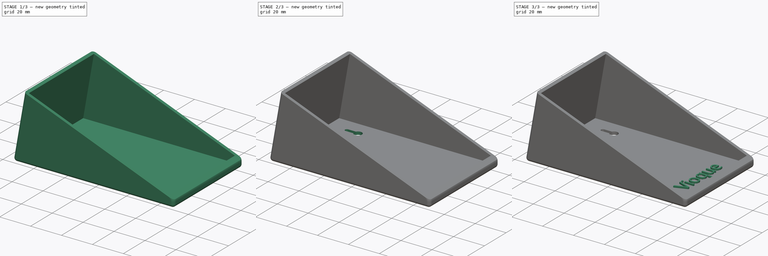
[diagram: build sequence overview — one tinted view per stage of 3, left to right]
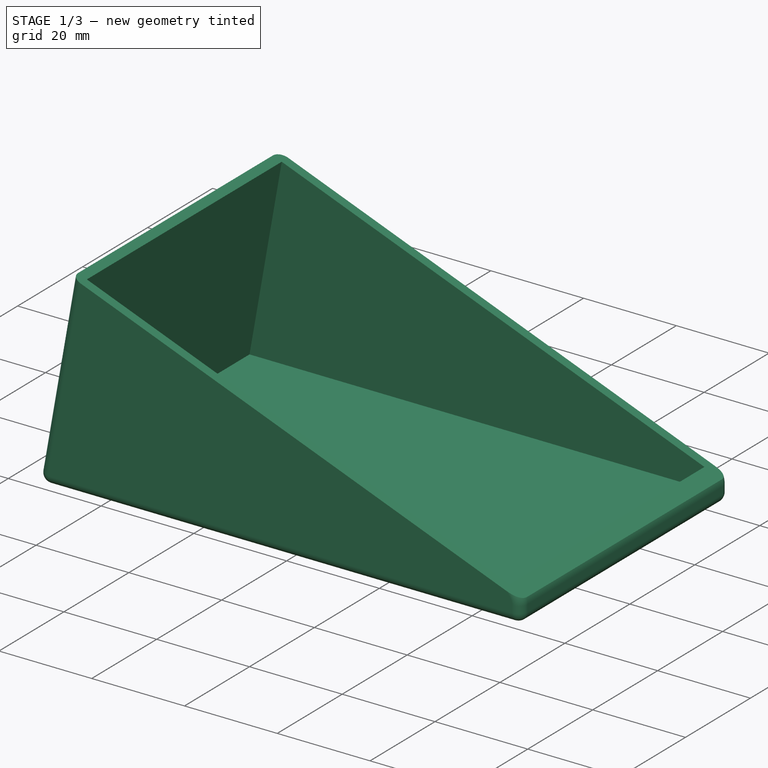
[diagram: stage 1 of 3 — iso view after this stage's code; geometry added in this stage tinted green]
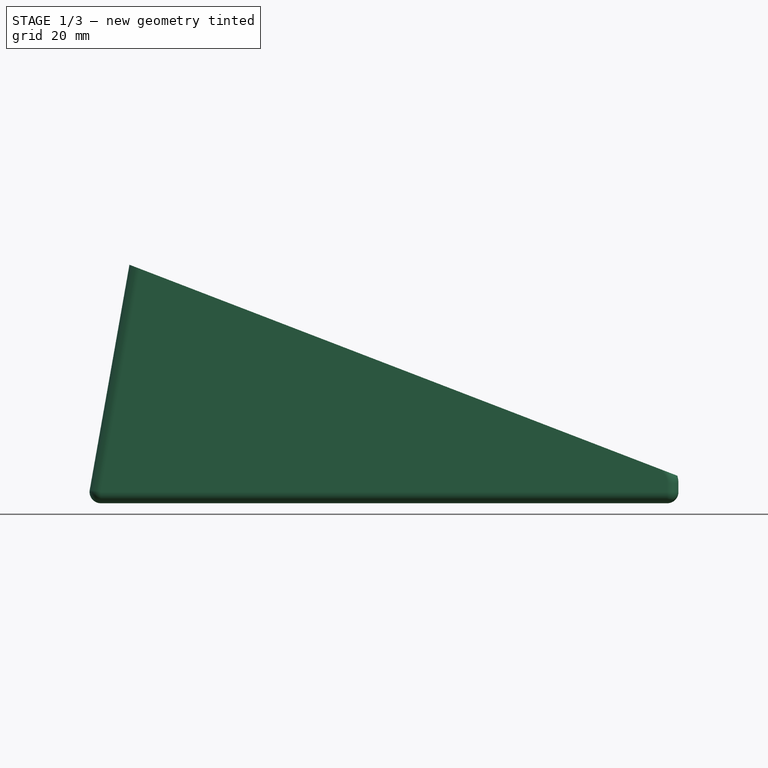
[diagram: stage 1 of 3 — front view after this stage's code; geometry added in this stage tinted green]
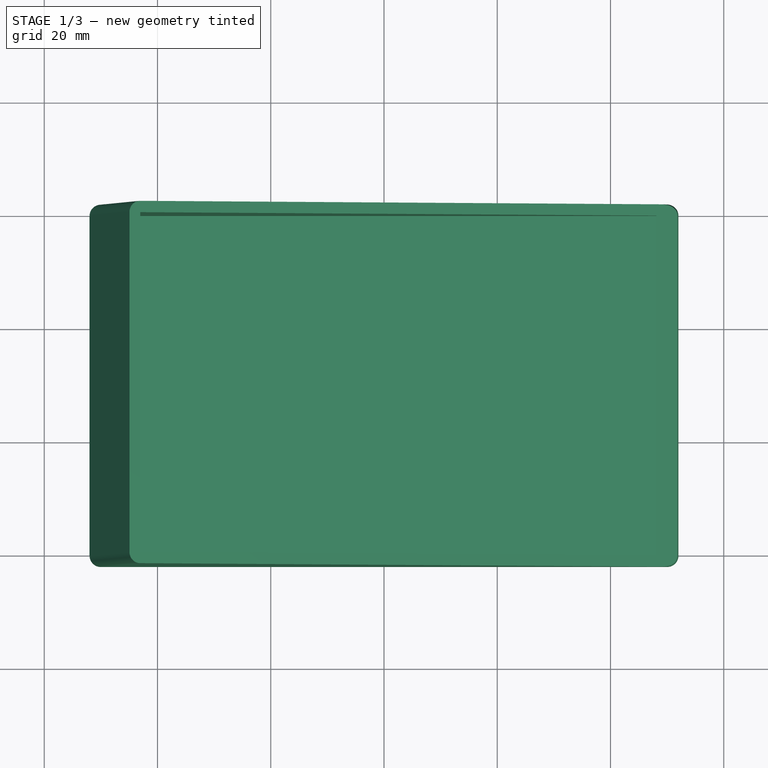
[diagram: stage 1 of 3 — top view after this stage's code; geometry added in this stage tinted green]
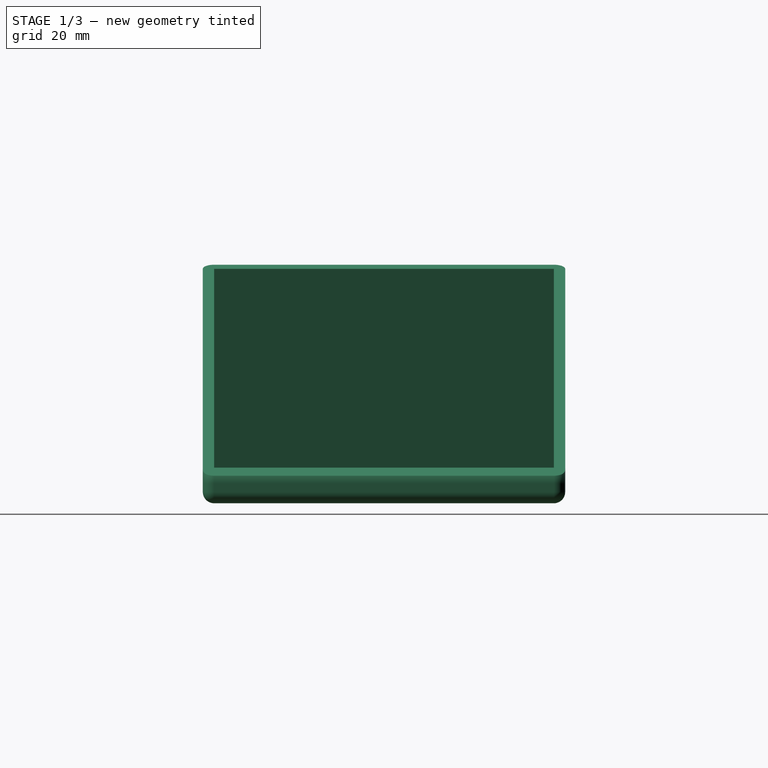
[diagram: stage 1 of 3 — right view after this stage's code; geometry added in this stage tinted green]
FCSTD DOCUMENT  (FreeCAD 0.15R4671 (Git))
Label: Visera timbre
License: All rights reserved
LicenseURL: http://en.wikipedia.org/wiki/All_rights_reserved
objects: Drawing::FeatureViewPart×3, Sketcher::SketchObject×2, PartDesign::Pad×2, App::FeaturePython×2, Part::Thickness×1, PartDesign::Pocket×1, Part::MultiCommon×1, Part::Part2DObjectPython×1, App::DocumentObjectGroup×1, Part::MultiFuse×1, Drawing::FeatureViewPython×1, Drawing::FeaturePage×1
note: 12 computed .brp shape members not serialized (recipe doc carries the construction recipe); baked Part::Feature solids carry a one-line shape summary decoded from their .brp

FEATURE [Sketcher::SketchObject] Sketch
  Placement = pos=(0,0,0) rot=(1,0,0;1.5708rad)
  sketch-geometry (5):
    g0: LineSegment StartX=-50 StartY=0 StartZ=0 EndX=-43.0541 EndY=39.3923 EndZ=0
    g1: LineSegment StartX=50 StartY=0 StartZ=0 EndX=-50 EndY=0 EndZ=0
    g2: LineSegment StartX=-43.0541 StartY=39.3923 StartZ=0 EndX=48.0781 EndY=4.29961 EndZ=0
    g3: LineSegment StartX=50 StartY=1.5 StartZ=0 EndX=50 EndY=0 EndZ=0
    g4: ArcOfCircle CenterX=47 CenterY=1.5 CenterZ=0 NormalX=0 NormalY=0 NormalZ=1 Radius=3 StartAngle=0 EndAngle=1.20322
  constraints (13):
    c: Coincident(g0,g1)
    c: PointOnObject(g0,g-1)
    c: Angle(g1,g0) = 1.39626
    c: Symmetric(g0,g1,g-2)
    c: DistanceX(g1) = -100
    c: Distance(g0) = 40
    c: Coincident(g2,g0)
    c: Coincident(g3,g1)
    c: Vertical(g3)
    c: Tangent(g2,g4) = 1.5708
    c: Tangent(g3,g4) = 1.5708
    c: Radius(g4) = 3
    c: DistanceY(g4,g1) = -1.5
FEATURE [PartDesign::Pad] Pad
  Length = 60
  Length2 = 100
  Placement = pos=(0,0,0) rot=(1,0,0;1.5708rad)
  Sketch = -> Sketch
  Type = 0
FEATURE [Part::Thickness] Thickness
  Faces = -> Pad [Face2]
  Intersection = false
  Join = 0
  Mode = 0
  SelfIntersection = false
  Value = 2
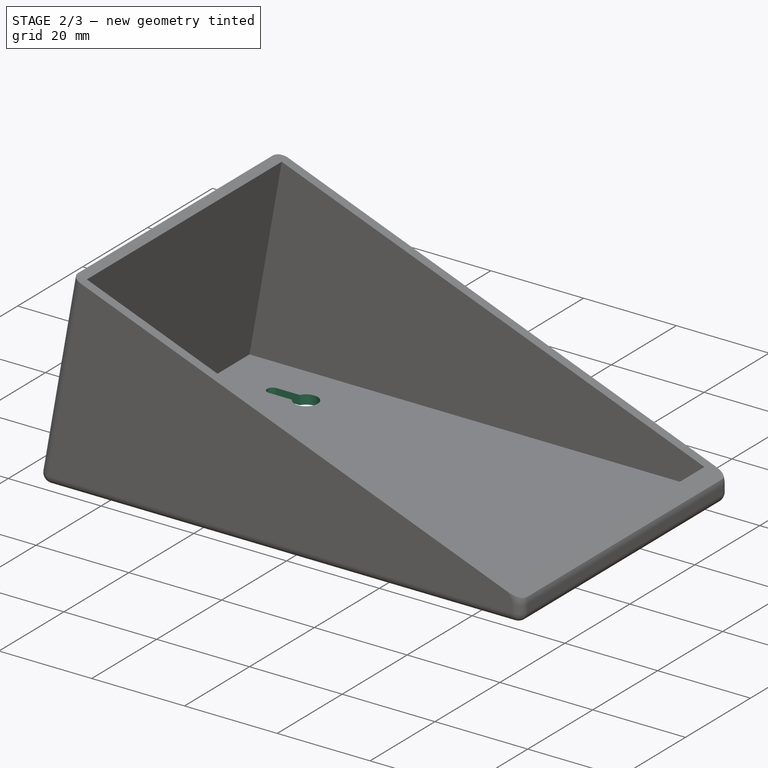
[diagram: stage 2 of 3 — iso view after this stage's code; geometry added in this stage tinted green]
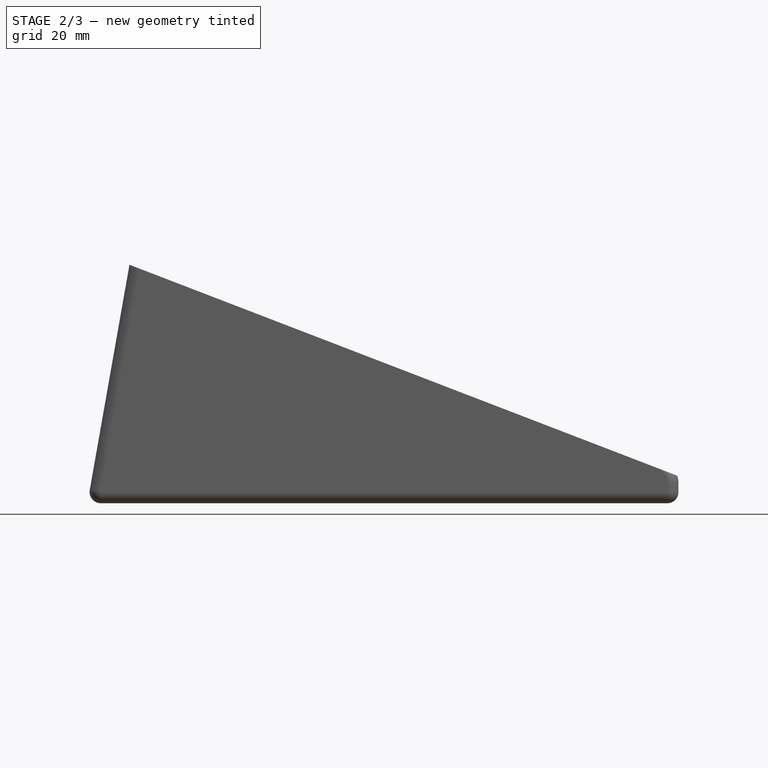
[diagram: stage 2 of 3 — front view after this stage's code; geometry added in this stage tinted green]
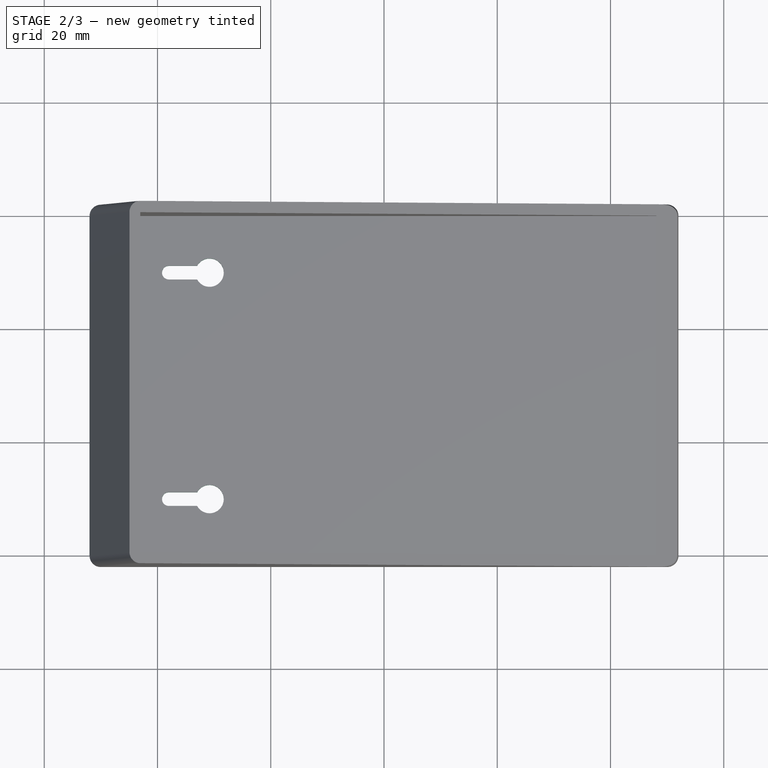
[diagram: stage 2 of 3 — top view after this stage's code; geometry added in this stage tinted green]
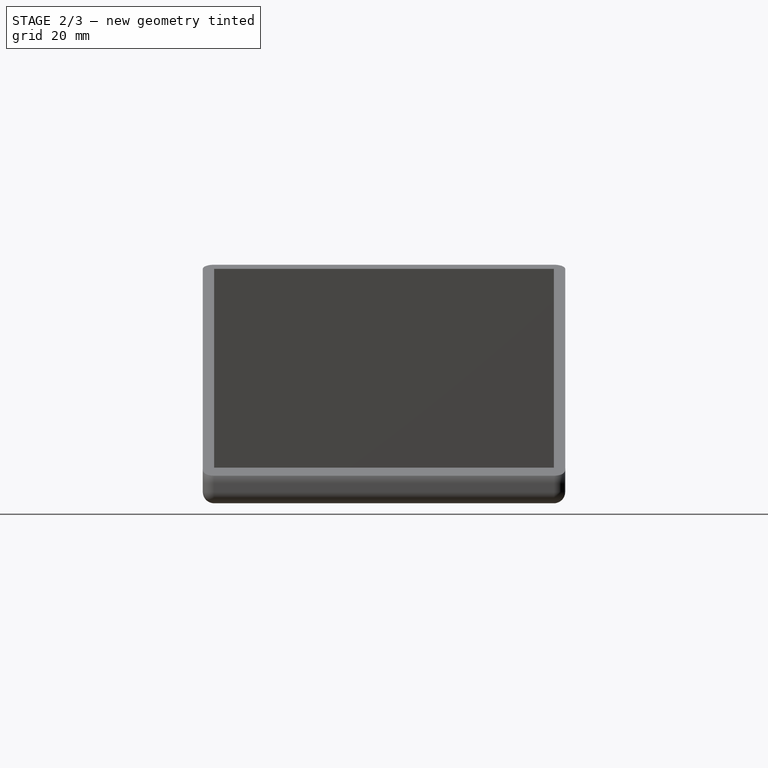
[diagram: stage 2 of 3 — right view after this stage's code; geometry added in this stage tinted green]
FEATURE [Sketcher::SketchObject] Sketch001
  Support = -> Thickness [Face3]
  sketch-geometry (8):
    g0: ArcOfCircle CenterX=-30.8068 CenterY=-10 CenterZ=0 NormalX=0 NormalY=0 NormalZ=1 Radius=2.5 StartAngle=3.64225 EndAngle=8.92412
    g1: ArcOfCircle CenterX=-38 CenterY=-10 CenterZ=0 NormalX=0 NormalY=0 NormalZ=1 Radius=1.2 StartAngle=1.5708 EndAngle=4.71239
    g2: LineSegment StartX=-38 StartY=-8.8 StartZ=0 EndX=-33 EndY=-8.8 EndZ=0
    g3: LineSegment StartX=-38 StartY=-11.2 StartZ=0 EndX=-33 EndY=-11.2 EndZ=0
    g4: ArcOfCircle CenterX=-30.8068 CenterY=-50 CenterZ=0 NormalX=0 NormalY=0 NormalZ=1 Radius=2.5 StartAngle=3.64225 EndAngle=8.92412
    g5: ArcOfCircle CenterX=-38 CenterY=-50 CenterZ=0 NormalX=0 NormalY=0 NormalZ=1 Radius=1.2 StartAngle=1.5708 EndAngle=4.71239
    g6: LineSegment StartX=-38 StartY=-48.8 StartZ=0 EndX=-33 EndY=-48.8 EndZ=0
    g7: LineSegment StartX=-38 StartY=-51.2 StartZ=0 EndX=-33 EndY=-51.2 EndZ=0
  constraints (28):
    c: Radius(g0) = 2.5
    c: Radius(g1) = 1.2
    c: Angle(g1) = 3.14159
    c: Coincident(g2,g1)
    c: Coincident(g2,g0)
    c: Horizontal(g2)
    c: Coincident(g3,g1)
    c: Coincident(g3,g0)
    c: Horizontal(g3)
    c: Equal(g2,g3)
    c: DistanceX(g-1,g1) = -38
    c: Coincident(g6,g5)
    c: Coincident(g6,g4)
    c: Horizontal(g6)
    c: Coincident(g7,g5)
    c: Horizontal(g7)
    c: Coincident(g7,g4)
    c: Equal(g6,g7)
    c: DistanceX(g6) = 5
    c: Radius(g5) = 1.2
    c: Angle(g5) = 3.14159
    c: Radius(g4) = 2.5
    c: DistanceX(g-1,g5) = -38
    c: DistanceY(g-1,g1) = -10
    c: DistanceY(g-1,g0) = -10
    c: DistanceX(g1,g0) = 5
    c: DistanceY(g-1,g4) = -50
    c: DistanceY(g-1,g5) = -50
FEATURE [PartDesign::Pocket] Pocket
  Length = 5
  Sketch = -> Sketch001
  Type = 0
FEATURE [Part::MultiCommon] Common
  Shapes = -> [Pocket,Thickness]
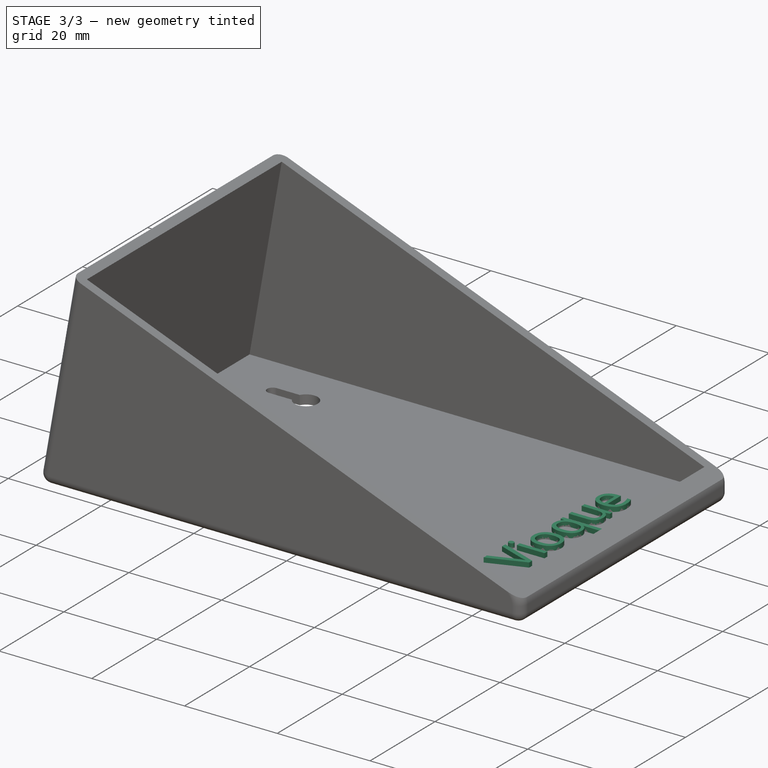
[diagram: stage 3 of 3 — iso view after this stage's code; geometry added in this stage tinted green]
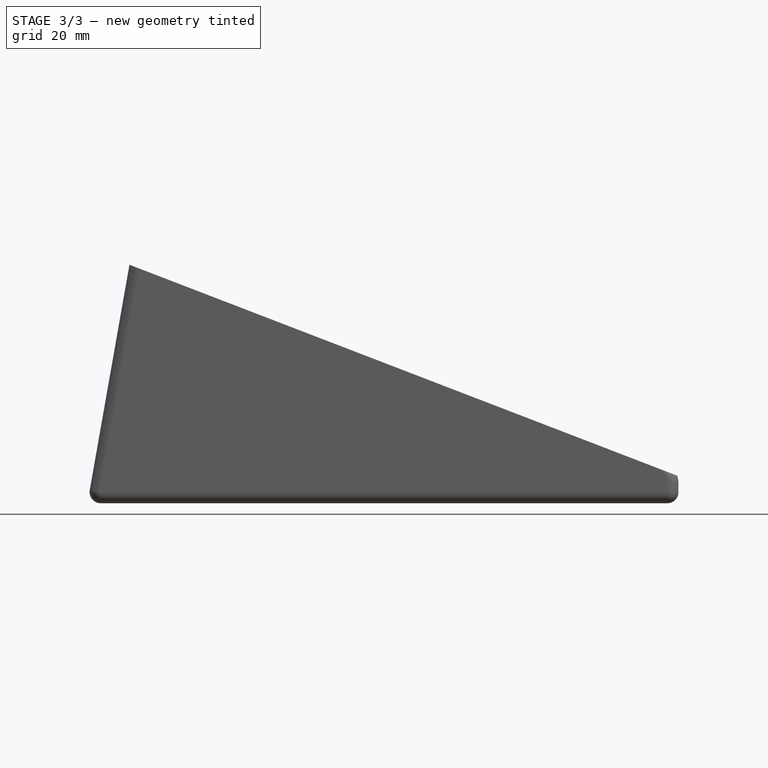
[diagram: stage 3 of 3 — front view after this stage's code; geometry added in this stage tinted green]
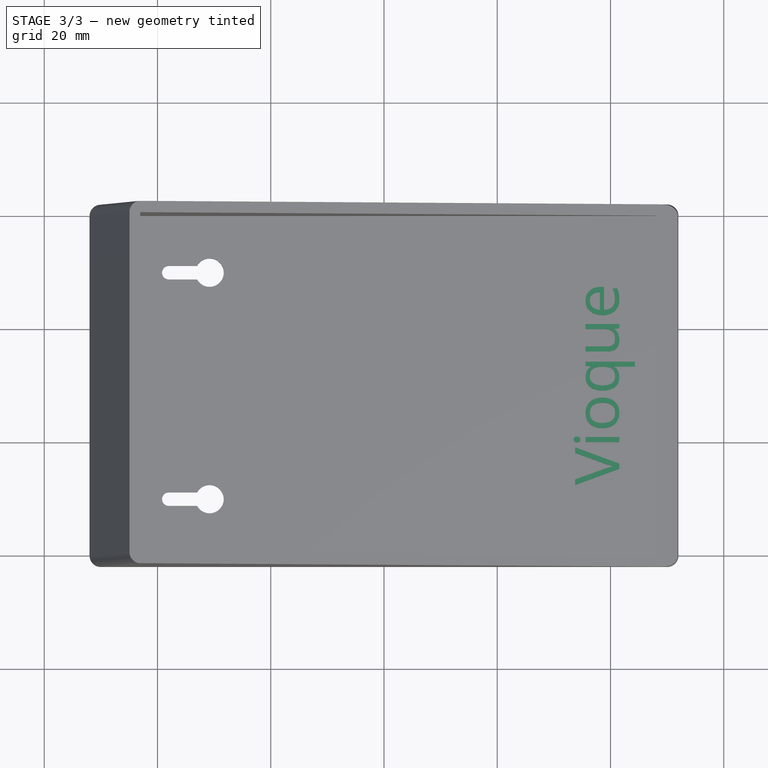
[diagram: stage 3 of 3 — top view after this stage's code; geometry added in this stage tinted green]
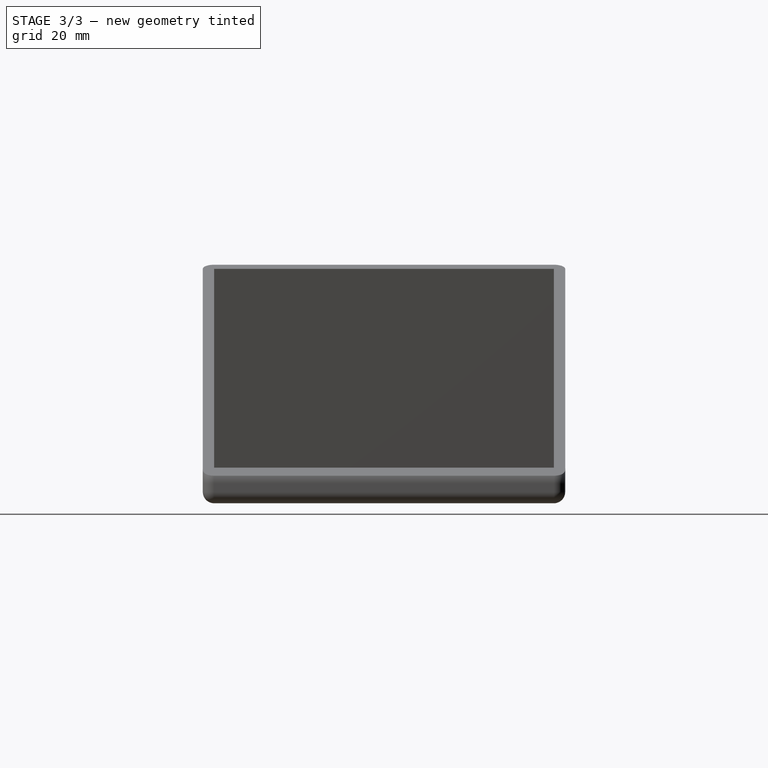
[diagram: stage 3 of 3 — right view after this stage's code; geometry added in this stage tinted green]
FEATURE [Part::Part2DObjectPython] ShapeString  # Draft 2D object (typed FeaturePython)
  FontFile = <userpath>/Documents/OpenSans-Regular.ttf
  Placement = pos=(41.5619,-47.5204,0) rot=(0,0,1;1.5708rad)
  Size = 10
  String = Vioque
  Support = -> Common
  Tracking = 0
FEATURE [PartDesign::Pad] Pad001
  Length = 1
  Length2 = 100
  Sketch = -> ShapeString
  Type = 0
FEATURE [App::FeaturePython] Dimension001  # Draft dimension (typed FeaturePython)
  Dimline = (-58.5906,-27.8409,0)
  Direction = (0,0,0)
  Distance = 64
  End = (-50,2,0)
  Normal = (0,0,1)
  Start = (-50,-62,0)
FEATURE [App::FeaturePython] Dimension002  # Draft dimension (typed FeaturePython)
  Dimline = (59.6734,-23.0905,0)
  Direction = (0,0,0)
  Distance = 40
  End = (-30.8068,-10,0)
  Normal = (0,0,1)
  Start = (-30.8068,-50,0)
FEATURE [App::DocumentObjectGroup] Group  label="Group-cotas-xy"
  Group = -> [Dimension002,Dimension001]
FEATURE [Part::MultiFuse] Fusion
  Shapes = -> [Pad001,Common]
FEATURE [Drawing::FeatureViewPart] Ortho  label="Ortho_0_0"
  Direction = (0,0,1)
  HiddenWidth = 0.15
  LineWidth = 0.8
  Rotation = 0
  ShowHiddenLines = false
  ShowSmoothLines = false
  Source = -> Fusion
  Tolerance = 0.05
  ViewResult = <blob: 12853 chars omitted>
  Visible = true
  X = 194.704
  Y = 27.9585
FEATURE [Drawing::FeatureViewPart] Ortho001  label="Ortho_0_-1"
  Direction = (0,-1,0)
  HiddenWidth = 0.15
  LineWidth = 0.8
  Rotation = 90
  ShowHiddenLines = false
  ShowSmoothLines = false
  Source = -> Fusion
  Tolerance = 0.05
  ViewResult = <blob: 3662 chars omitted>
  Visible = true
  X = 194.704
  Y = 146.042
FEATURE [Drawing::FeatureViewPart] Ortho002  label="Ortho_-1_-1"
  Direction = (-0.57735,-0.57735,0.57735)
  HiddenWidth = 0.15
  LineWidth = 0.8
  Rotation = 60
  ShowHiddenLines = false
  ShowSmoothLines = false
  Source = -> Fusion
  Tolerance = 0.05
  ViewResult = <blob: 18636 chars omitted>
  Visible = true
  X = 80
  Y = 110.26
FEATURE [Drawing::FeatureViewPython] ViewGroup  # drawing view (typed FeaturePython)
  Direction = (0,0,0)
  FillStyle = 0
  FontSize = 12
  LineStyle = 0
  LineWidth = 0.35
  Rotation = 0
  Source = -> Group
  ViewResult = <blob: 2146 chars omitted>
  Visible = true
  X = 194.7
  Y = 27.96
FEATURE [Drawing::FeaturePage] Page
  EditableTexts = Marcelo Vioque | Vioque Gómez | Viomar | pdf | Visera timbre  | 0001 | 15/05/2016 | CTV1
  Group = -> [Ortho,Ortho001,Ortho002,ViewGroup]
  Template = C:/Program Files/FreeCAD 0.15/data/Mod/Drawing/Templates/A4_Landscape_ISO7200.svg
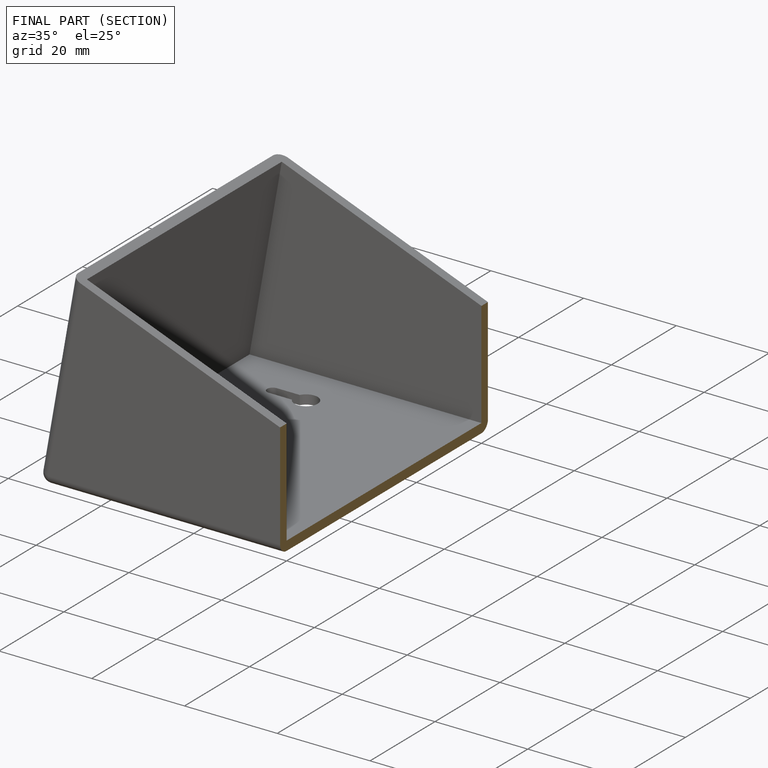
[diagram: finished part — half-section view (interior)]
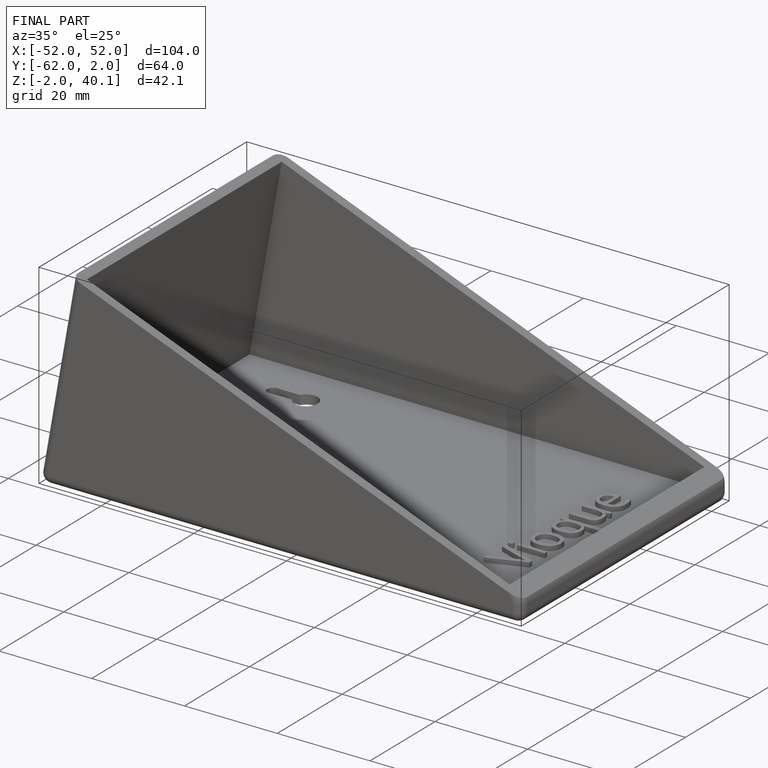
[diagram: finished part — iso view with bounding-box wireframe]
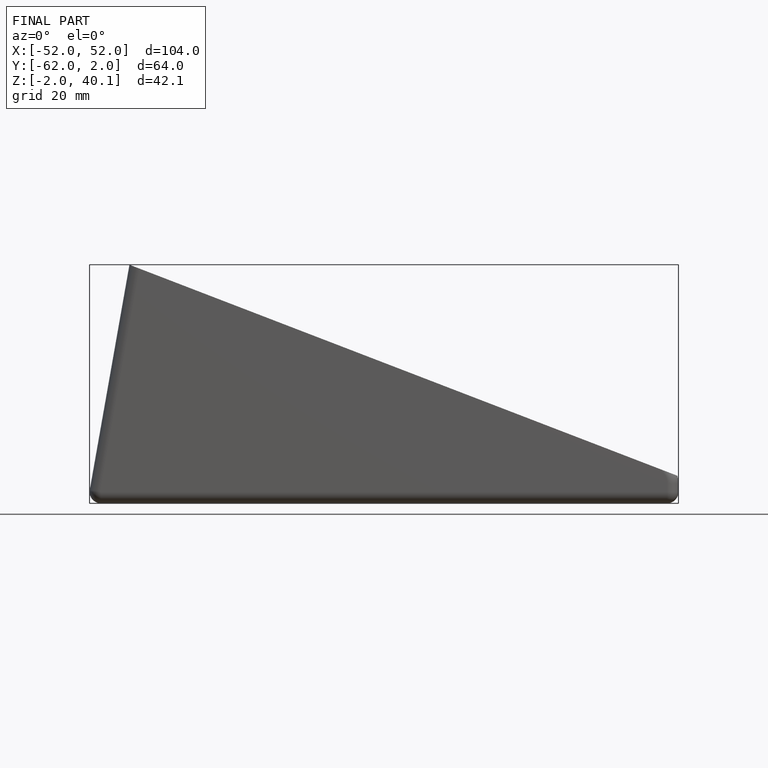
[diagram: finished part — front view with bounding-box wireframe]
